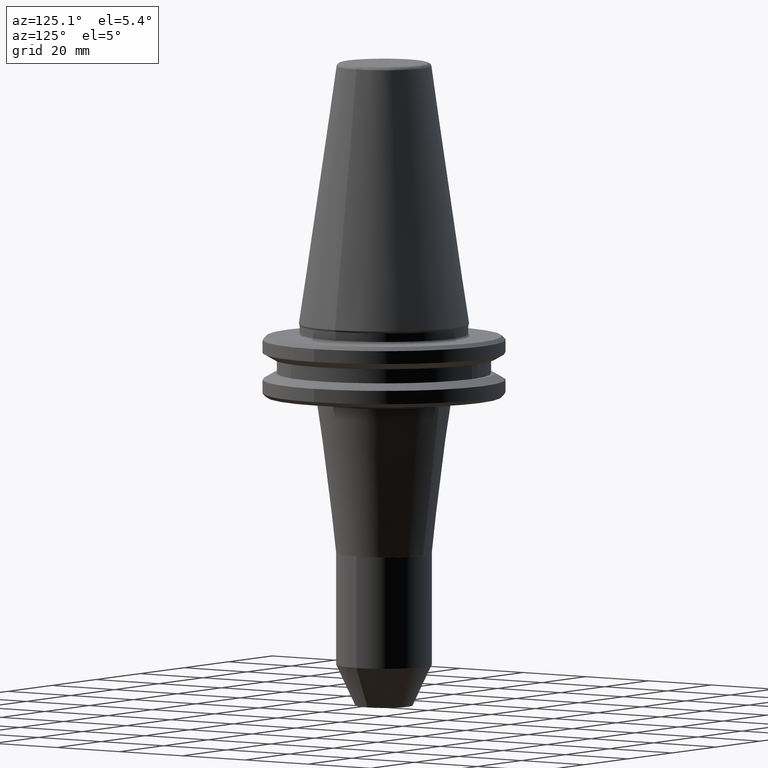
[diagram: clean part render]
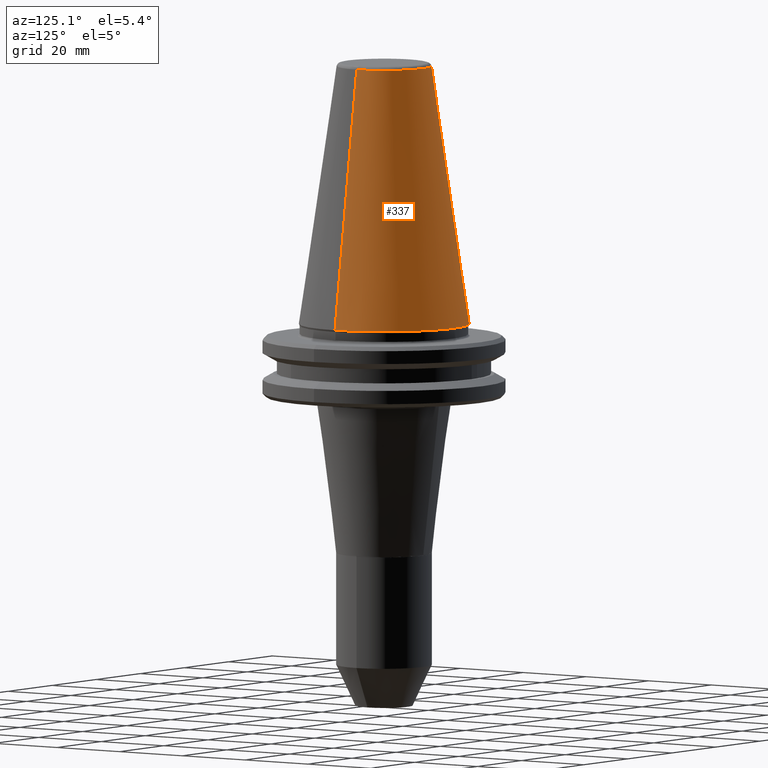
[diagram: same view with one face highlighted and labeled with its STEP entity id]
A machine part, auxiliary view. The second image highlights one B-rep face of the part: STEP entity #337.
In plain terms, the highlighted conical surface has half-angle 8.297 deg.
Its self-contained STEP definition (entity closure, byte-faithful):
#140 = ORIENTED_EDGE ( 'NONE', *, *, #421, .T. ) ;
#144 = AXIS2_PLACEMENT_3D ( 'NONE', #1426, #1409, #1254 ) ;
#191 = CARTESIAN_POINT ( 'NONE',  ( 12.37469537590452100, -2.855354478374084000E-009, 67.54430822699950500 ) ) ;
#267 = DIRECTION ( 'NONE',  ( 0.1443082272694599400, 1.767266086161729200E-017, -0.9895327864918603800 ) ) ;
#273 = CARTESIAN_POINT ( 'NONE',  ( 22.22499999999999400, 2.721777511104992100E-015, 0.0000000000000000000 ) ) ;
#333 = CARTESIAN_POINT ( 'NONE',  ( -12.37469537590595100, -5.555843992514513000E-010, 67.54430822698967100 ) ) ;
#337 = ADVANCED_FACE ( 'NONE', ( #397 ), #689, .T. ) ;
#355 = LINE ( 'NONE', #273, #674 ) ;
#365 = CARTESIAN_POINT ( 'NONE',  ( -22.22499999999999400, 0.0000000000000000000, 0.0000000000000000000 ) ) ;
#371 = EDGE_LOOP ( 'NONE', ( #1425, #1006, #140, #1108 ) ) ;
#397 = FACE_OUTER_BOUND ( 'NONE', #371, .T. ) ;
#421 = EDGE_CURVE ( 'NONE', #928, #1284, #602, .T. ) ;
#437 = DIRECTION ( 'NONE',  ( -0.1443082272694599400, 0.0000000000000000000, -0.9895327864918603800 ) ) ;
#439 = CARTESIAN_POINT ( 'NONE',  ( -22.22499999999999400, 0.0000000000000000000, 0.0000000000000000000 ) ) ;
#602 = CIRCLE ( 'NONE', #144, 22.22499999999999400 ) ;
#674 = VECTOR ( 'NONE', #267, 1000.000000000000100 ) ;
#689 = CONICAL_SURFACE ( 'NONE', #1150, 22.22499999999999400, 0.1448138465495947800 ) ;
#724 = AXIS2_PLACEMENT_3D ( 'NONE', #890, #891, #886 ) ;
#886 = DIRECTION ( 'NONE',  ( -1.000000000000000000, 0.0000000000000000000, 0.0000000000000000000 ) ) ;
#890 = CARTESIAN_POINT ( 'NONE',  ( 0.0000000000000000000, 0.0000000000000000000, 67.54430822699998800 ) ) ;
#891 = DIRECTION ( 'NONE',  ( 0.0000000000000000000, 0.0000000000000000000, -1.000000000000000000 ) ) ;
#928 = VERTEX_POINT ( 'NONE', #1074 ) ;
#1003 = EDGE_CURVE ( 'NONE', #1292, #1441, #1259, .T. ) ;
#1006 = ORIENTED_EDGE ( 'NONE', *, *, #1356, .T. ) ;
#1074 = CARTESIAN_POINT ( 'NONE',  ( 22.22499999999999400, 2.721777511104992100E-015, 0.0000000000000000000 ) ) ;
#1085 = DIRECTION ( 'NONE',  ( 0.0000000000000000000, 0.0000000000000000000, -1.000000000000000000 ) ) ;
#1108 = ORIENTED_EDGE ( 'NONE', *, *, #1167, .F. ) ;
#1150 = AXIS2_PLACEMENT_3D ( 'NONE', #1178, #1085, #1309 ) ;
#1167 = EDGE_CURVE ( 'NONE', #1292, #1284, #1457, .T. ) ;
#1178 = CARTESIAN_POINT ( 'NONE',  ( 0.0000000000000000000, 0.0000000000000000000, 0.0000000000000000000 ) ) ;
#1254 = DIRECTION ( 'NONE',  ( -1.000000000000000000, 0.0000000000000000000, 0.0000000000000000000 ) ) ;
#1259 = CIRCLE ( 'NONE', #724, 12.37469537600000400 ) ;
#1284 = VERTEX_POINT ( 'NONE', #365 ) ;
#1292 = VERTEX_POINT ( 'NONE', #333 ) ;
#1309 = DIRECTION ( 'NONE',  ( -1.000000000000000000, 0.0000000000000000000, 0.0000000000000000000 ) ) ;
#1356 = EDGE_CURVE ( 'NONE', #1441, #928, #355, .T. ) ;
#1409 = DIRECTION ( 'NONE',  ( -0.0000000000000000000, -0.0000000000000000000, 1.000000000000000000 ) ) ;
#1425 = ORIENTED_EDGE ( 'NONE', *, *, #1003, .T. ) ;
#1426 = CARTESIAN_POINT ( 'NONE',  ( 0.0000000000000000000, 0.0000000000000000000, 0.0000000000000000000 ) ) ;
#1441 = VERTEX_POINT ( 'NONE', #191 ) ;
#1457 = LINE ( 'NONE', #439, #1465 ) ;
#1465 = VECTOR ( 'NONE', #437, 1000.000000000000100 ) ;